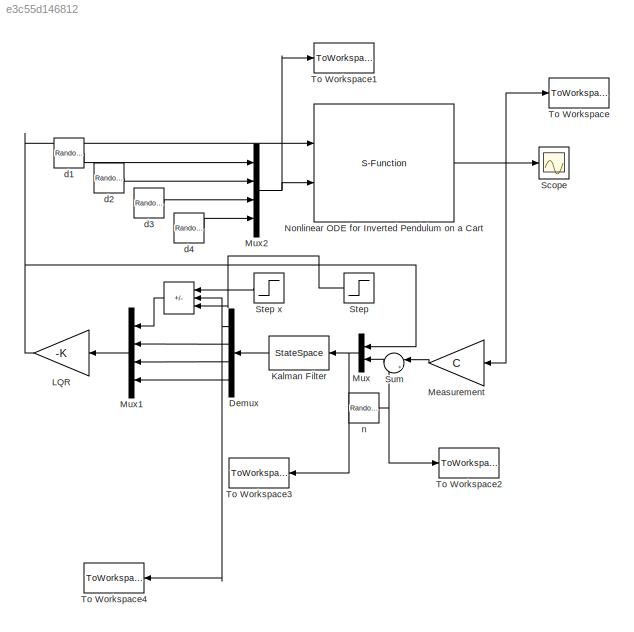
MODEL slx_e3c55d146812
KIND model
CONFIG AbsTol = auto
CONFIG EnableMultiTasking = on
CONFIG FixedStep = auto
CONFIG MaxStep = auto
CONFIG MinStep = auto
CONFIG RelTol = 1e-3
CONFIG SampleTimeConstraint = Unconstrained
CONFIG SolverName = VariableStepAuto
CONFIG StartTime = 0.0
CONFIG StopTime = 50.0
BLOCK [Sum]  
  IconShape = rectangular
  Inputs = -+-
  Ports = [3, 1]
BLOCK [Demux] Demux
  Ports = [1, 4]
BLOCK [StateSpace] Kalman Filter
  A = sysKF.a
  B = sysKF.b
  C = sysKF.c
  D = sysKF.d
  InitialCondition = [0 0 0 0]
  Ports = [1, 1]
BLOCK [Gain] LQR
  Gain = -K
  Multiplication = Matrix(K*u) (u vector)
  Tag = -Kr*xhat
BLOCK [Gain] Measurement
  Description = a
  Gain = C
  Multiplication = Matrix(K*u) (u vector)
BLOCK [Mux] Mux
  DisplayOption = bar
  Inputs = 2
  Ports = [2, 1]
BLOCK [Mux] Mux1
  DisplayOption = bar
  Ports = [4, 1]
BLOCK [Mux] Mux2
  DisplayOption = bar
  Ports = [4, 1]
BLOCK [S-Function] Nonlinear ODE for Inverted Pendulum on a Cart
  CopyFcn = set_param(gcbh,'LinkStatus','none')
  EnableBusSupport = off
  FunctionName = cartpend_sim
  InitFcn = try, set_param(gcb,'FunctionName','cartpend_sim'), end
  OpenFcn = sfunctionwizard(gcbh)
  Ports = [2, 1]
  PreSaveFcn = try, set_param(gcb,'FunctionName','cartpend_sim'), end
  SFcnIsStateOwnerBlock = off
  SFunctionDeploymentMode = off
  SFunctionModules = cartpend_sim_wrapper
BLOCK [Scope] Scope
  Floating = off
  NumInputPorts = 1
  Ports = [1]
  ScopeSpecificationString = Simulink.scopes.TimeScopeBlockCfg('CurrentConfiguration', extmgr.ConfigurationSet(extmgr.Configuration('Core','General UI',true),extmgr.Configuration('Core','Source UI',true),extmgr.Configuration('Sources','WiredSimulink',true),extmgr.Configuration('Visuals','Time Domain',true,'SerializedDisplays',{struct('MinYLimReal','-1.51611','MaxYLimReal','5.11088','YLabelReal','','MinYLimMag','0.00000','MaxY...<+1564ch>
BLOCK [Step] Step
  After = 2
  NameLocation = top
  SampleTime = 0
  Time = 15
BLOCK [Step] Step x
  SampleTime = 0
  Time = 10
BLOCK [Sum] Sum
  Inputs = |++
  Ports = [2, 1]
BLOCK [ToWorkspace] To Workspace
  FixptAsFi = on
  MaxDataPoints = inf
  Ports = [1]
  SampleTime = -1
  SaveFormat = Timeseries
  VariableName = x
BLOCK [ToWorkspace] To Workspace1
  FixptAsFi = on
  MaxDataPoints = inf
  Ports = [1]
  SampleTime = -1
  SaveFormat = Timeseries
  VariableName = wd
BLOCK [ToWorkspace] To Workspace2
  FixptAsFi = on
  MaxDataPoints = inf
  Ports = [1]
  SampleTime = -1
  SaveFormat = Timeseries
  VariableName = wn
BLOCK [ToWorkspace] To Workspace3
  FixptAsFi = on
  MaxDataPoints = inf
  Ports = [1]
  SampleTime = -1
  SaveFormat = Timeseries
  VariableName = yn
BLOCK [ToWorkspace] To Workspace4
  FixptAsFi = on
  MaxDataPoints = inf
  Ports = [1]
  SampleTime = -1
  SaveFormat = Timeseries
  VariableName = yKF
BLOCK [RandomNumber] d1
  Variance = Vdmag
BLOCK [RandomNumber] d2
  Seed = 1
  Variance = Vdmag
BLOCK [RandomNumber] d3
  Seed = 2
  Variance = Vdmag
BLOCK [RandomNumber] d4
  Seed = 3
  Variance = Vdmag
BLOCK [RandomNumber] n
  Seed = 4
  Variance = Vn
LINE  :1 -> Mux1:1
NET Demux:1 ->  :2, To Workspace4:1
LINE Demux:2 -> Mux1:2
LINE Demux:3 -> Mux1:3
LINE Demux:4 -> Mux1:4
LINE Kalman Filter:1 -> Demux:1
NET LQR:1 -> Mux:1, Nonlinear ODE for Inverted Pendulum on a Cart:1
LINE Measurement:1 -> Sum:1
LINE Mux1:1 -> LQR:1
NET Mux2:1 -> Nonlinear ODE for Inverted Pendulum on a Cart:2, To Workspace1:1
NET Mux:1 -> Kalman Filter:1, To Workspace3:1
NET Nonlinear ODE for Inverted Pendulum on a Cart:1 -> Measurement:1, Scope:1, To Workspace:1
LINE Step x:1 ->  :1
LINE Step:1 ->  :3
LINE Sum:1 -> Mux:2
LINE d1:1 -> Mux2:1
LINE d2:1 -> Mux2:2
LINE d3:1 -> Mux2:3
LINE d4:1 -> Mux2:4
NET n:1 -> Sum:2, To Workspace2:1
note: NET lines group one-source signal fan-out (src -> all destinations, sorted); 1:1 wires keep LINE
